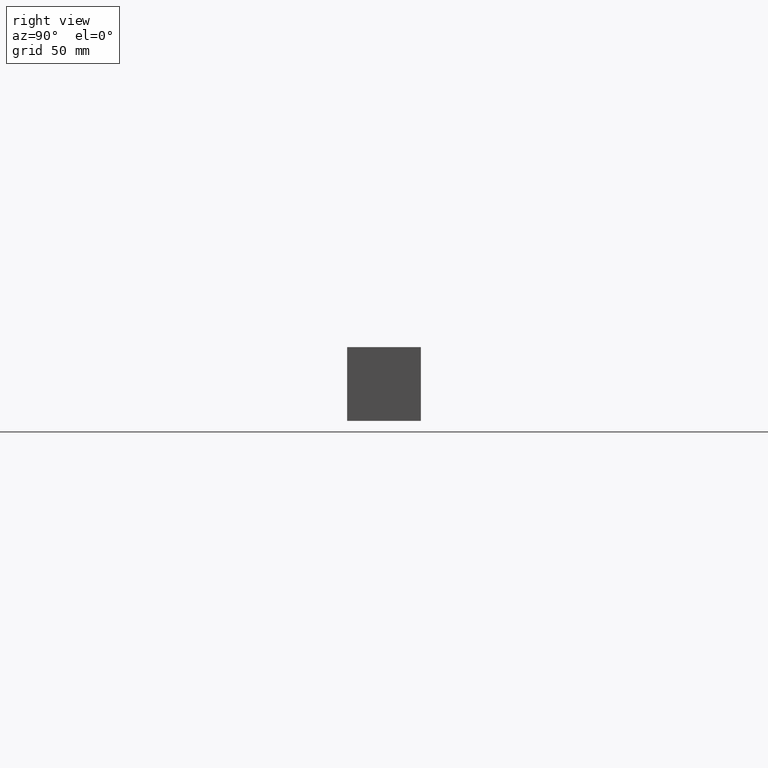
[diagram: clean part render]
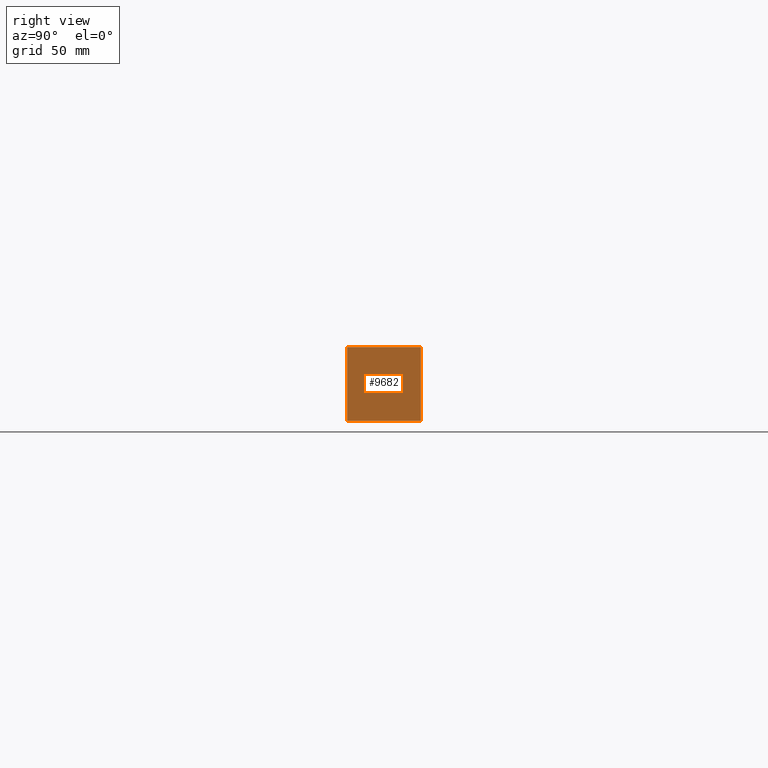
[diagram: same view with one face highlighted and labeled with its STEP entity id]
A machine part, right view. The second image highlights one B-rep face of the part: STEP entity #9682.
In plain terms, the highlighted planar face has unit normal (1, 0, 0).
Its self-contained STEP definition (entity closure, byte-faithful):
#826=PLANE('',#10421);
#1343=FACE_OUTER_BOUND('',#1937,.T.);
#1937=EDGE_LOOP('',(#8683,#8684,#8685,#8686));
#2187=LINE('',#15225,#2915);
#2679=LINE('',#17400,#3407);
#2680=LINE('',#17403,#3408);
#2681=LINE('',#17404,#3409);
#2915=VECTOR('',#10751,10.);
#3407=VECTOR('',#12593,10.);
#3408=VECTOR('',#12596,10.);
#3409=VECTOR('',#12597,10.);
#4032=VERTEX_POINT('',#15222);
#4033=VERTEX_POINT('',#15224);
#4617=VERTEX_POINT('',#17398);
#4618=VERTEX_POINT('',#17402);
#5103=EDGE_CURVE('',#4032,#4033,#2187,.T.);
#5983=EDGE_CURVE('',#4617,#4033,#2679,.T.);
#5984=EDGE_CURVE('',#4618,#4617,#2680,.T.);
#5985=EDGE_CURVE('',#4618,#4032,#2681,.T.);
#8683=ORIENTED_EDGE('',*,*,#5984,.T.);
#8684=ORIENTED_EDGE('',*,*,#5983,.T.);
#8685=ORIENTED_EDGE('',*,*,#5103,.F.);
#8686=ORIENTED_EDGE('',*,*,#5985,.F.);
#9682=ADVANCED_FACE('',(#1343),#826,.T.);
#10421=AXIS2_PLACEMENT_3D('',#17401,#12594,#12595);
#10751=DIRECTION('',(0.,1.,0.));
#12593=DIRECTION('',(0.,0.,1.));
#12594=DIRECTION('center_axis',(1.,0.,0.));
#12595=DIRECTION('ref_axis',(0.,1.,0.));
#12596=DIRECTION('',(0.,1.,0.));
#12597=DIRECTION('',(0.,0.,1.));
#15222=CARTESIAN_POINT('',(498.475,0.,50.8));
#15224=CARTESIAN_POINT('',(498.475,50.8,50.8));
#15225=CARTESIAN_POINT('',(498.475,0.,50.8));
#17398=CARTESIAN_POINT('',(498.475,50.8,0.));
#17400=CARTESIAN_POINT('',(498.475,50.8,0.));
#17401=CARTESIAN_POINT('Origin',(498.475,0.,0.));
#17402=CARTESIAN_POINT('',(498.475,0.,0.));
#17403=CARTESIAN_POINT('',(498.475,0.,0.));
#17404=CARTESIAN_POINT('',(498.475,0.,0.));